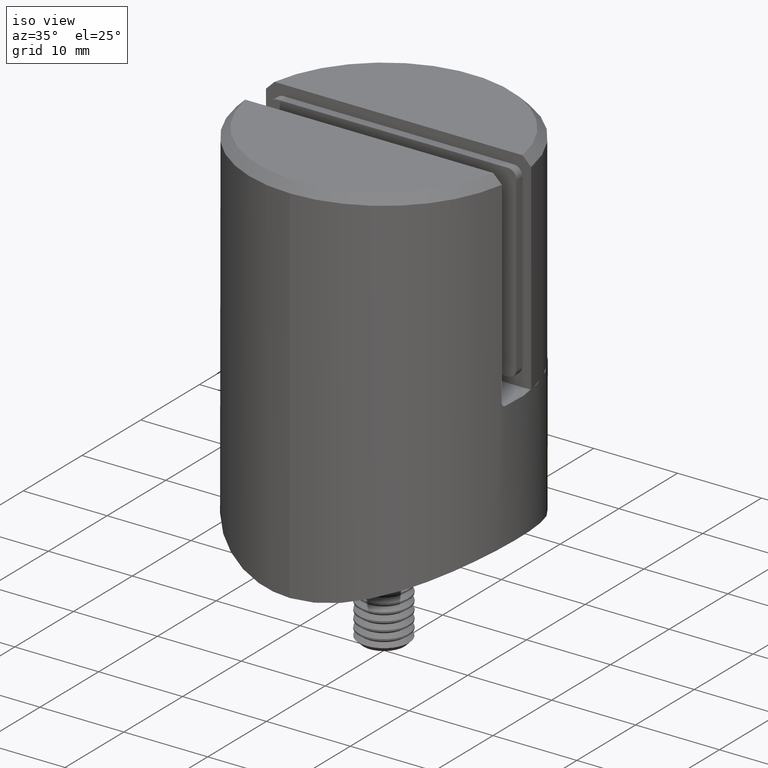
[diagram: clean part render]
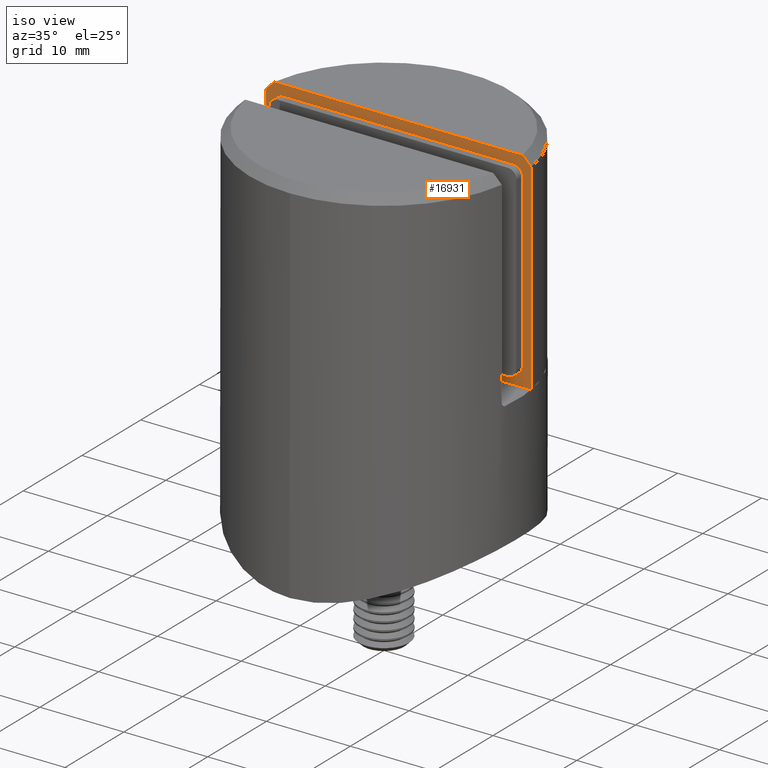
[diagram: same view with one face highlighted and labeled with its STEP entity id]
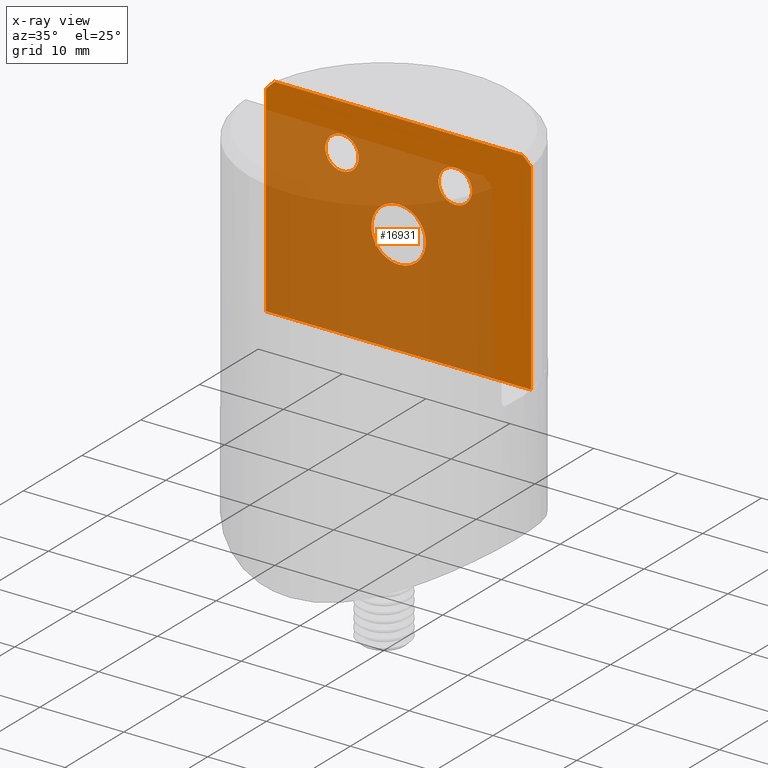
[diagram: x-ray of the same camera — body ghosted, the highlighted face saturated]
A machine part, iso view. The second image highlights one B-rep face of the part: STEP entity #16931.
The next image is the same camera in x-ray: the body ghosted, the highlighted face saturated — about 72% of this face is hidden behind the body in this view.
In plain terms, the highlighted planar face has unit normal (0, 1, 0).
Its self-contained STEP definition (entity closure, byte-faithful):
#308 = CARTESIAN_POINT ( 'NONE',  ( 14.79019945774903633, 2.500000000000000444, 25.00000000000000000 ) ) ;
#441 = CARTESIAN_POINT ( 'NONE',  ( 15.80348062927910924, 2.500000000000000444, 0.000000000000000000 ) ) ;
#772 = VECTOR ( 'NONE', #16483, 1000.000000000000000 ) ;
#867 = VERTEX_POINT ( 'NONE', #19397 ) ;
#917 = CIRCLE ( 'NONE', #16404, 3.249999999999999556 ) ;
#1001 = CARTESIAN_POINT ( 'NONE',  ( -14.79019945774903455, 2.500000000000000444, 25.00000000000000000 ) ) ;
#1056 = CARTESIAN_POINT ( 'NONE',  ( -15.80348062927910924, 2.500000000000000444, 25.00000000000000000 ) ) ;
#1472 = CARTESIAN_POINT ( 'NONE',  ( -15.80348062927910924, 2.500000000000000444, 25.00000000000000000 ) ) ;
#1873 = VECTOR ( 'NONE', #7172, 1000.000000000000000 ) ;
#2640 = FACE_BOUND ( 'NONE', #8620, .T. ) ;
#2706 = ORIENTED_EDGE ( 'NONE', *, *, #12671, .F. ) ;
#2905 = EDGE_CURVE ( 'NONE', #13083, #4490, #4897, .T. ) ;
#3013 = DIRECTION ( 'NONE',  ( 0.000000000000000000, -1.000000000000000000, 0.000000000000000000 ) ) ;
#3486 = ORIENTED_EDGE ( 'NONE', *, *, #8567, .F. ) ;
#3518 = VERTEX_POINT ( 'NONE', #8600 ) ;
#3607 = FACE_OUTER_BOUND ( 'NONE', #13732, .T. ) ;
#4002 = VERTEX_POINT ( 'NONE', #6906 ) ;
#4289 = VECTOR ( 'NONE', #13791, 1000.000000000000000 ) ;
#4490 = VERTEX_POINT ( 'NONE', #14738 ) ;
#4814 = FACE_BOUND ( 'NONE', #12944, .T. ) ;
#4878 = AXIS2_PLACEMENT_3D ( 'NONE', #15011, #5904, #7440 ) ;
#4897 = B_SPLINE_CURVE_WITH_KNOTS ( 'NONE', 3,
 ( #7930, #6519, #14057, #308 ),
 .UNSPECIFIED., .F., .F.,
 ( 4, 4 ),
 ( 0.000000000000000000, 0.001423635744345223830 ),
 .UNSPECIFIED. ) ;
#5455 = EDGE_CURVE ( 'NONE', #16929, #15939, #15132, .T. ) ;
#5699 = ORIENTED_EDGE ( 'NONE', *, *, #7399, .T. ) ;
#5904 = DIRECTION ( 'NONE',  ( 0.000000000000000000, -1.000000000000000000, 0.000000000000000000 ) ) ;
#6034 = CARTESIAN_POINT ( 'NONE',  ( 15.80348062927910924, 2.500000000000000444, 25.00000000000000000 ) ) ;
#6519 = CARTESIAN_POINT ( 'NONE',  ( 15.46585946293022218, 2.500000000000000444, 24.33347434765182271 ) ) ;
#6701 = CARTESIAN_POINT ( 'NONE',  ( -15.80348062927910924, 2.500000000000000444, 0.000000000000000000 ) ) ;
#6906 = CARTESIAN_POINT ( 'NONE',  ( -6.750000000000002665, 2.500000000000000444, 17.49999999999999645 ) ) ;
#7172 = DIRECTION ( 'NONE',  ( 1.000000000000000000, 0.000000000000000000, 0.000000000000000000 ) ) ;
#7247 = VERTEX_POINT ( 'NONE', #441 ) ;
#7269 = ORIENTED_EDGE ( 'NONE', *, *, #5455, .T. ) ;
#7399 = EDGE_CURVE ( 'NONE', #17198, #7247, #10905, .T. ) ;
#7440 = DIRECTION ( 'NONE',  ( 0.000000000000000000, 0.000000000000000000, -1.000000000000000000 ) ) ;
#7930 = CARTESIAN_POINT ( 'NONE',  ( 15.80348062927910924, 2.500000000000000444, 23.99999999999998934 ) ) ;
#8370 = CIRCLE ( 'NONE', #4878, 2.000000000000005329 ) ;
#8466 = CARTESIAN_POINT ( 'NONE',  ( -15.80348062927910924, 2.500000000000000444, 23.99999999999998934 ) ) ;
#8567 = EDGE_CURVE ( 'NONE', #13083, #7247, #12532, .T. ) ;
#8600 = CARTESIAN_POINT ( 'NONE',  ( 1.530808498934191521E-15, 2.500000000000000444, 15.75000000000000000 ) ) ;
#8620 = EDGE_LOOP ( 'NONE', ( #11367 ) ) ;
#8956 = CARTESIAN_POINT ( 'NONE',  ( -15.80348062927910924, 2.500000000000000444, 25.00000000000000000 ) ) ;
#8977 = ORIENTED_EDGE ( 'NONE', *, *, #2905, .T. ) ;
#9377 = CARTESIAN_POINT ( 'NONE',  ( 15.80348062927910924, 2.500000000000000444, 23.99999999999998934 ) ) ;
#9887 = EDGE_LOOP ( 'NONE', ( #2706 ) ) ;
#10054 = LINE ( 'NONE', #1056, #1873 ) ;
#10278 = AXIS2_PLACEMENT_3D ( 'NONE', #13838, #3013, #18363 ) ;
#10489 = DIRECTION ( 'NONE',  ( 0.000000000000000000, 1.000000000000000000, 0.000000000000000000 ) ) ;
#10708 = EDGE_CURVE ( 'NONE', #16929, #4490, #10054, .T. ) ;
#10748 = EDGE_CURVE ( 'NONE', #867, #867, #8370, .T. ) ;
#10905 = LINE ( 'NONE', #16349, #772 ) ;
#11367 = ORIENTED_EDGE ( 'NONE', *, *, #10748, .F. ) ;
#11635 = CARTESIAN_POINT ( 'NONE',  ( -15.46585946293021863, 2.500000000000000444, 24.33347434765182271 ) ) ;
#11638 = CIRCLE ( 'NONE', #10278, 2.000000000000001776 ) ;
#11834 = VECTOR ( 'NONE', #18438, 1000.000000000000000 ) ;
#11904 = DIRECTION ( 'NONE',  ( 0.000000000000000000, -0.000000000000000000, 1.000000000000000000 ) ) ;
#12099 = PLANE ( 'NONE',  #12102 ) ;
#12102 = AXIS2_PLACEMENT_3D ( 'NONE', #8956, #10489, #11904 ) ;
#12532 = LINE ( 'NONE', #6034, #11834 ) ;
#12563 = DIRECTION ( 'NONE',  ( 0.000000000000000000, 0.000000000000000000, 1.000000000000000000 ) ) ;
#12671 = EDGE_CURVE ( 'NONE', #4002, #4002, #11638, .T. ) ;
#12944 = EDGE_LOOP ( 'NONE', ( #19261 ) ) ;
#13083 = VERTEX_POINT ( 'NONE', #9377 ) ;
#13651 = CARTESIAN_POINT ( 'NONE',  ( -14.79019945774903455, 2.500000000000000444, 25.00000000000000000 ) ) ;
#13732 = EDGE_LOOP ( 'NONE', ( #16370, #7269, #16039, #5699, #3486, #8977 ) ) ;
#13791 = DIRECTION ( 'NONE',  ( -0.000000000000000000, -0.000000000000000000, -1.000000000000000000 ) ) ;
#13838 = CARTESIAN_POINT ( 'NONE',  ( -6.750000000000002665, 2.500000000000000444, 19.49999999999999645 ) ) ;
#13926 = DIRECTION ( 'NONE',  ( 0.000000000000000000, 1.000000000000000000, 0.000000000000000000 ) ) ;
#14057 = CARTESIAN_POINT ( 'NONE',  ( 15.12810841561664787, 2.500000000000000444, 24.66681727430519544 ) ) ;
#14738 = CARTESIAN_POINT ( 'NONE',  ( 14.79019945774903633, 2.500000000000000444, 25.00000000000000000 ) ) ;
#15011 = CARTESIAN_POINT ( 'NONE',  ( 6.749999999999997335, 2.500000000000000444, 19.49999999999999645 ) ) ;
#15132 = B_SPLINE_CURVE_WITH_KNOTS ( 'NONE', 3,
 ( #1001, #16435, #11635, #8466 ),
 .UNSPECIFIED., .F., .F.,
 ( 4, 4 ),
 ( 0.000000000000000000, 0.001423635744345227083 ),
 .UNSPECIFIED. ) ;
#15939 = VERTEX_POINT ( 'NONE', #16572 ) ;
#16039 = ORIENTED_EDGE ( 'NONE', *, *, #18959, .T. ) ;
#16349 = CARTESIAN_POINT ( 'NONE',  ( -15.80348062927910924, 2.500000000000000444, 0.000000000000000000 ) ) ;
#16370 = ORIENTED_EDGE ( 'NONE', *, *, #10708, .F. ) ;
#16404 = AXIS2_PLACEMENT_3D ( 'NONE', #18519, #13926, #12563 ) ;
#16435 = CARTESIAN_POINT ( 'NONE',  ( -15.12810841561664610, 2.500000000000000444, 24.66681727430519544 ) ) ;
#16483 = DIRECTION ( 'NONE',  ( 1.000000000000000000, 0.000000000000000000, 0.000000000000000000 ) ) ;
#16572 = CARTESIAN_POINT ( 'NONE',  ( -15.80348062927910924, 2.500000000000000444, 23.99999999999998934 ) ) ;
#16579 = LINE ( 'NONE', #1472, #4289 ) ;
#16624 = FACE_BOUND ( 'NONE', #9887, .T. ) ;
#16929 = VERTEX_POINT ( 'NONE', #13651 ) ;
#16931 = ADVANCED_FACE ( 'NONE', ( #4814, #2640, #16624, #3607 ), #12099, .F. ) ;
#17198 = VERTEX_POINT ( 'NONE', #6701 ) ;
#17907 = EDGE_CURVE ( 'NONE', #3518, #3518, #917, .T. ) ;
#18363 = DIRECTION ( 'NONE',  ( 0.000000000000000000, 0.000000000000000000, -1.000000000000000000 ) ) ;
#18438 = DIRECTION ( 'NONE',  ( -0.000000000000000000, -0.000000000000000000, -1.000000000000000000 ) ) ;
#18519 = CARTESIAN_POINT ( 'NONE',  ( 1.530808498934191521E-15, 2.500000000000000444, 12.50000000000000000 ) ) ;
#18959 = EDGE_CURVE ( 'NONE', #15939, #17198, #16579, .T. ) ;
#19261 = ORIENTED_EDGE ( 'NONE', *, *, #17907, .T. ) ;
#19397 = CARTESIAN_POINT ( 'NONE',  ( 6.749999999999997335, 2.500000000000000444, 17.49999999999999289 ) ) ;